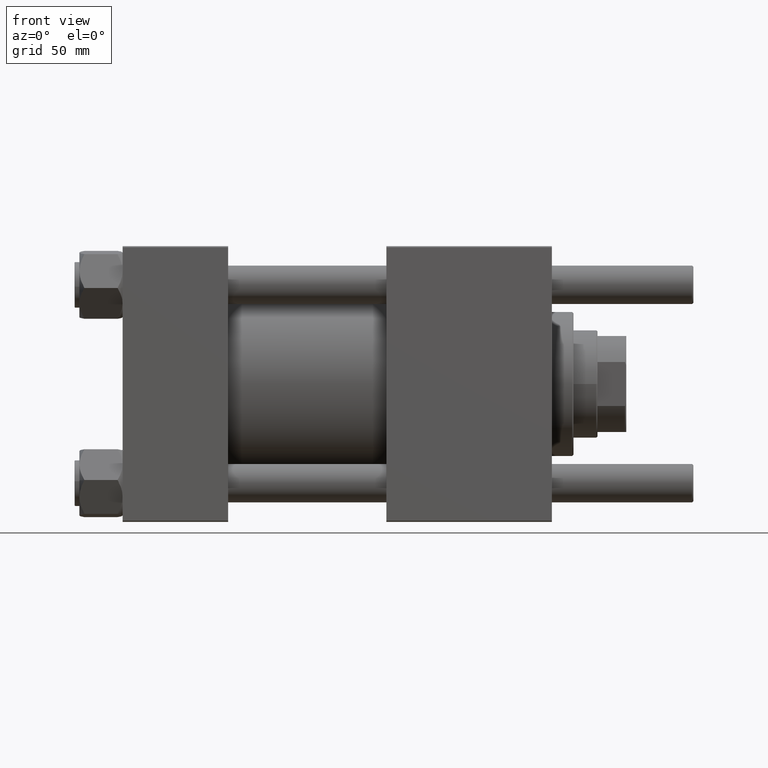
[diagram: clean part render]
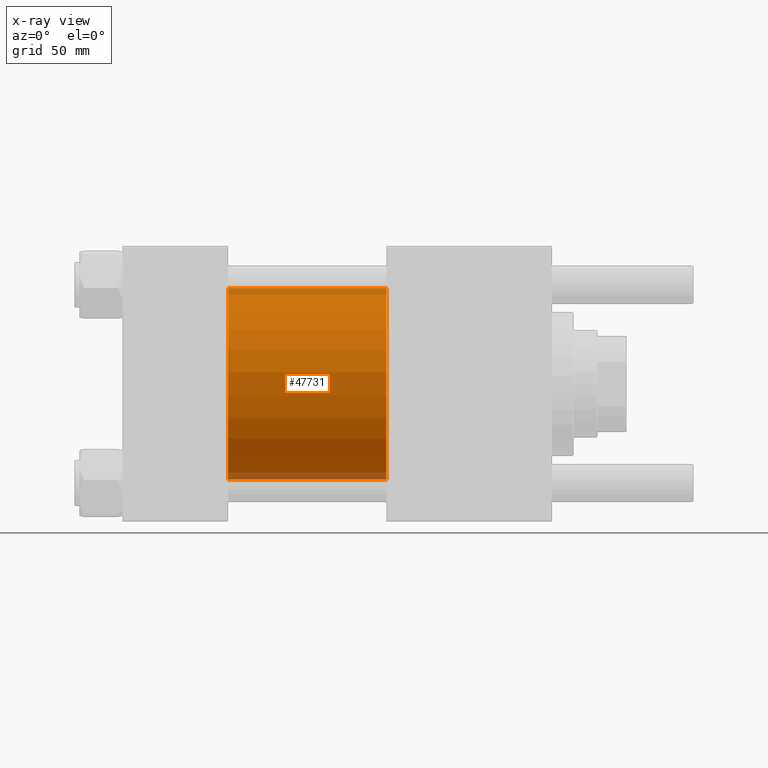
[diagram: x-ray — body ghosted, one internal face saturated and labeled with its STEP entity id]
A machine part, front view, then the same camera in x-ray: the body is ghosted and one INTERNAL B-rep face — a face not visible from any outside direction — is saturated and labeled: STEP entity #47731.
In plain terms, the highlighted cylindrical surface (partial cylindrical patch) has radius 40 mm, axis along (-1, -0, -0).
Its self-contained STEP definition (entity closure, byte-faithful):
#464 = AXIS2_PLACEMENT_3D ( 'NONE', #9715, #18951, #44978 ) ;
#7785 = CARTESIAN_POINT ( 'NONE',  ( 110.0000000000000000, -2.602085213965210642E-15, 0.000000000000000000 ) ) ;
#8455 = AXIS2_PLACEMENT_3D ( 'NONE', #7785, #25416, #43058 ) ;
#9715 = CARTESIAN_POINT ( 'NONE',  ( 110.0000000000000000, -2.602085213965210642E-15, 0.000000000000000000 ) ) ;
#10416 = ORIENTED_EDGE ( 'NONE', *, *, #31972, .T. ) ;
#12546 = DIRECTION ( 'NONE',  ( 1.000000000000000000, 0.000000000000000000, 0.000000000000000000 ) ) ;
#14042 = FACE_OUTER_BOUND ( 'NONE', #35968, .T. ) ;
#14943 = CIRCLE ( 'NONE', #8455, 40.00000000000000000 ) ;
#17572 = CIRCLE ( 'NONE', #23105, 40.00000000000000000 ) ;
#18652 = ORIENTED_EDGE ( 'NONE', *, *, #28305, .F. ) ;
#18951 = DIRECTION ( 'NONE',  ( -1.000000000000000000, -0.000000000000000000, -0.000000000000000000 ) ) ;
#19013 = LINE ( 'NONE', #46167, #37568 ) ;
#21467 = DIRECTION ( 'NONE',  ( -1.000000000000000000, -0.000000000000000000, -0.000000000000000000 ) ) ;
#22056 = DIRECTION ( 'NONE',  ( 0.000000000000000000, 0.000000000000000000, -1.000000000000000000 ) ) ;
#23105 = AXIS2_PLACEMENT_3D ( 'NONE', #26406, #12546, #22056 ) ;
#23569 = CARTESIAN_POINT ( 'NONE',  ( 44.00000000000000000, -2.602085213965210642E-15, 40.00000000000000000 ) ) ;
#24291 = CARTESIAN_POINT ( 'NONE',  ( 110.0000000000000000, 2.296501982624201990E-15, -40.00000000000000000 ) ) ;
#25416 = DIRECTION ( 'NONE',  ( 1.000000000000000000, 0.000000000000000000, 0.000000000000000000 ) ) ;
#26406 = CARTESIAN_POINT ( 'NONE',  ( 44.00000000000000000, -2.602085213965210642E-15, 0.000000000000000000 ) ) ;
#28156 = VERTEX_POINT ( 'NONE', #23569 ) ;
#28305 = EDGE_CURVE ( 'NONE', #28156, #30163, #17572, .T. ) ;
#30163 = VERTEX_POINT ( 'NONE', #45388 ) ;
#30165 = LINE ( 'NONE', #48338, #31166 ) ;
#30814 = ORIENTED_EDGE ( 'NONE', *, *, #56548, .F. ) ;
#31166 = VECTOR ( 'NONE', #21467, 1000.000000000000000 ) ;
#31972 = EDGE_CURVE ( 'NONE', #40248, #55278, #14943, .T. ) ;
#35968 = EDGE_LOOP ( 'NONE', ( #10416, #55084, #18652, #30814 ) ) ;
#37447 = CARTESIAN_POINT ( 'NONE',  ( 110.0000000000000000, -2.602085213965210642E-15, 40.00000000000000000 ) ) ;
#37568 = VECTOR ( 'NONE', #54270, 1000.000000000000000 ) ;
#40248 = VERTEX_POINT ( 'NONE', #37447 ) ;
#43058 = DIRECTION ( 'NONE',  ( 0.000000000000000000, 0.000000000000000000, -1.000000000000000000 ) ) ;
#44978 = DIRECTION ( 'NONE',  ( 0.000000000000000000, 0.000000000000000000, 1.000000000000000000 ) ) ;
#45388 = CARTESIAN_POINT ( 'NONE',  ( 44.00000000000000000, 2.296501982624201990E-15, -40.00000000000000000 ) ) ;
#46167 = CARTESIAN_POINT ( 'NONE',  ( 110.0000000000000000, 2.296501982624201990E-15, -40.00000000000000000 ) ) ;
#47731 = ADVANCED_FACE ( 'NONE', ( #14042 ), #49297, .F. ) ;
#48338 = CARTESIAN_POINT ( 'NONE',  ( 110.0000000000000000, -2.602085213965210642E-15, 40.00000000000000000 ) ) ;
#49297 = CYLINDRICAL_SURFACE ( 'NONE', #464, 40.00000000000000000 ) ;
#53752 = EDGE_CURVE ( 'NONE', #55278, #30163, #19013, .T. ) ;
#54270 = DIRECTION ( 'NONE',  ( -1.000000000000000000, -0.000000000000000000, -0.000000000000000000 ) ) ;
#55084 = ORIENTED_EDGE ( 'NONE', *, *, #53752, .T. ) ;
#55278 = VERTEX_POINT ( 'NONE', #24291 ) ;
#56548 = EDGE_CURVE ( 'NONE', #40248, #28156, #30165, .T. ) ;